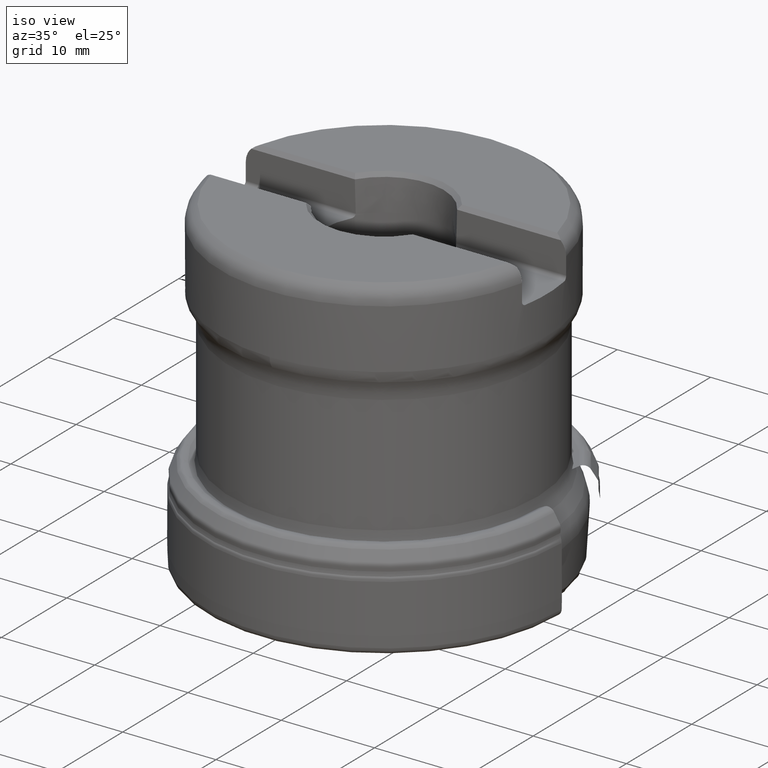
[diagram: clean part render]
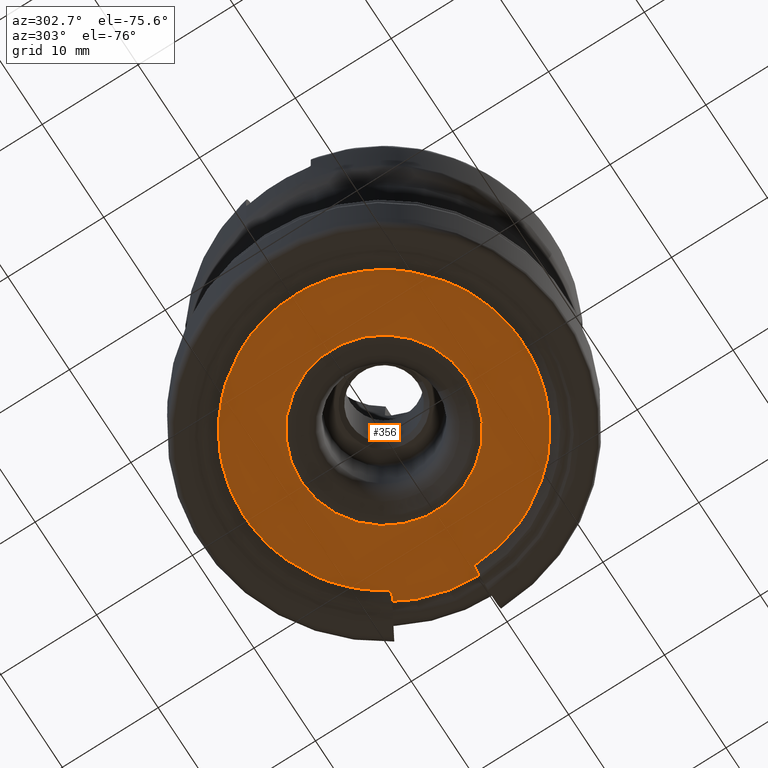
[diagram: tour spotlight — one face highlighted and labeled with its STEP entity id]
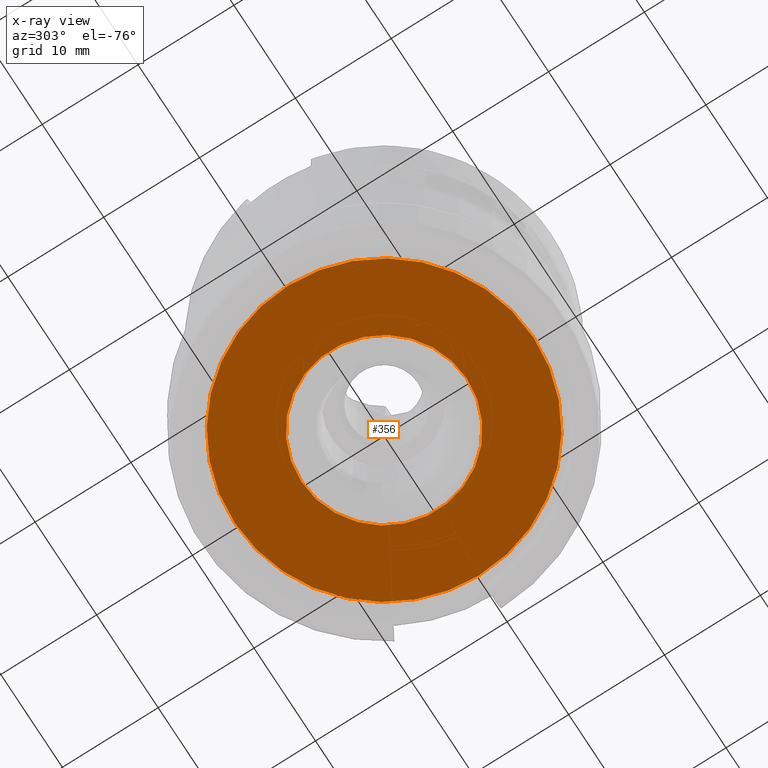
[diagram: x-ray of the same camera — body ghosted, this tour face saturated]
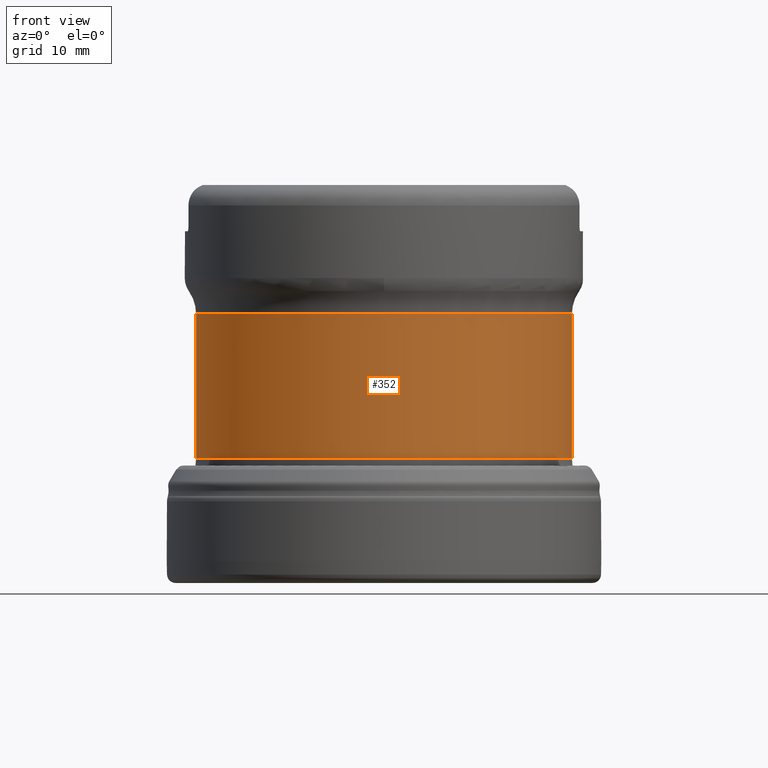
[diagram: tour spotlight — one face highlighted and labeled with its STEP entity id]
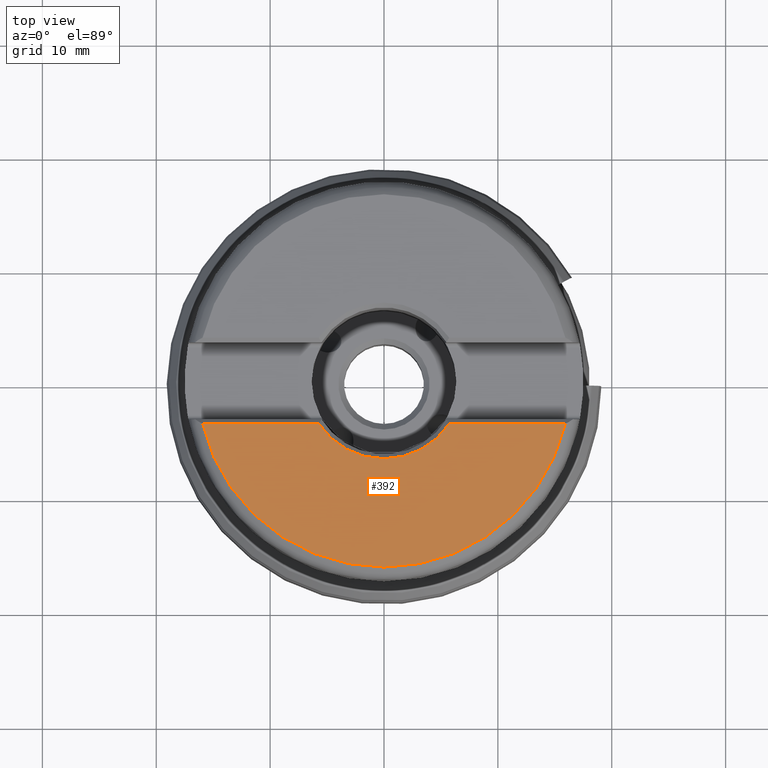
[diagram: tour spotlight — one face highlighted and labeled with its STEP entity id]
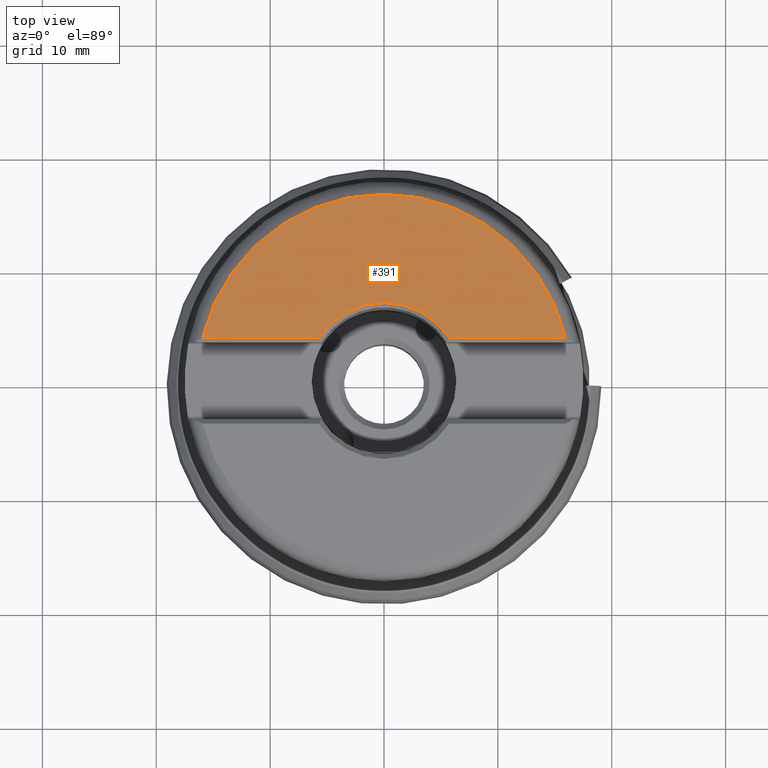
[diagram: tour spotlight — one face highlighted and labeled with its STEP entity id]
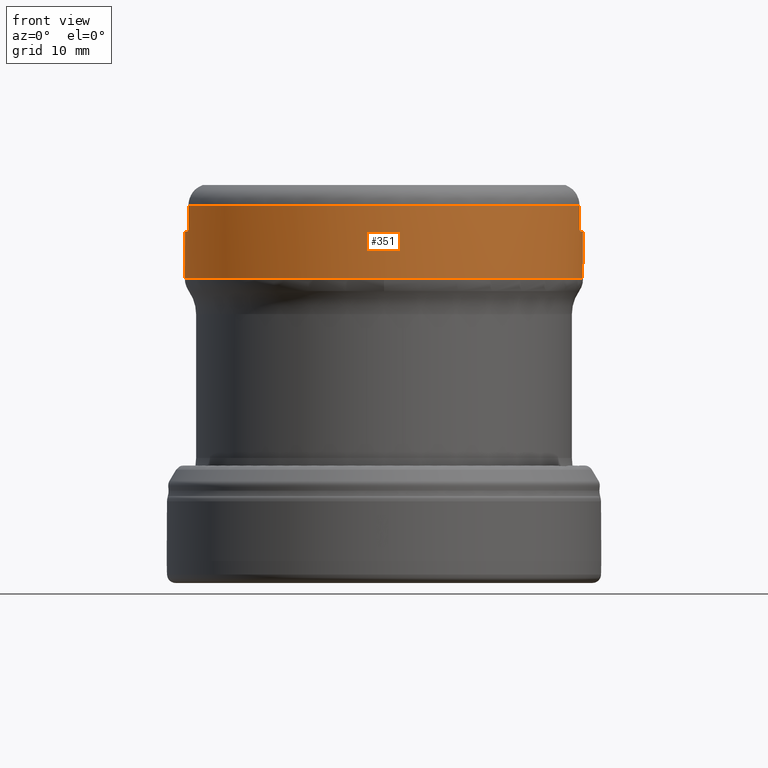
[diagram: tour spotlight — one face highlighted and labeled with its STEP entity id]
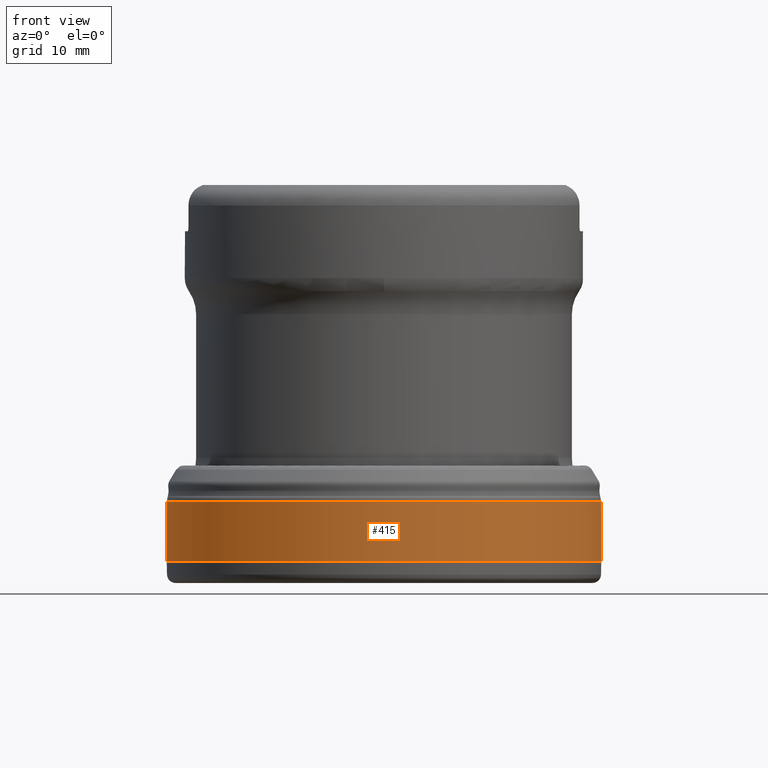
[diagram: tour spotlight — one face highlighted and labeled with its STEP entity id]
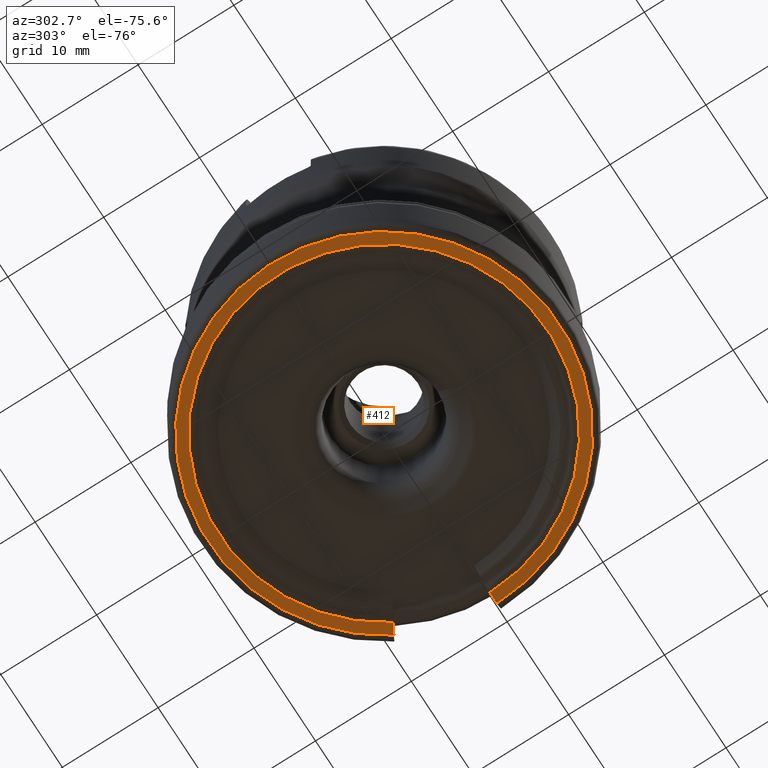
[diagram: tour spotlight — one face highlighted and labeled with its STEP entity id]
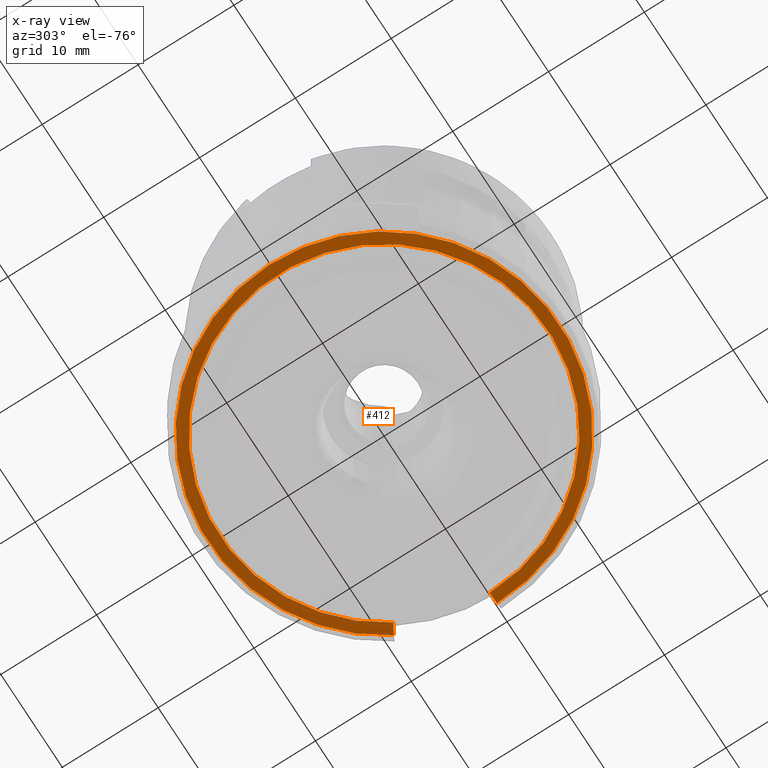
[diagram: x-ray of the same camera — body ghosted, this tour face saturated]
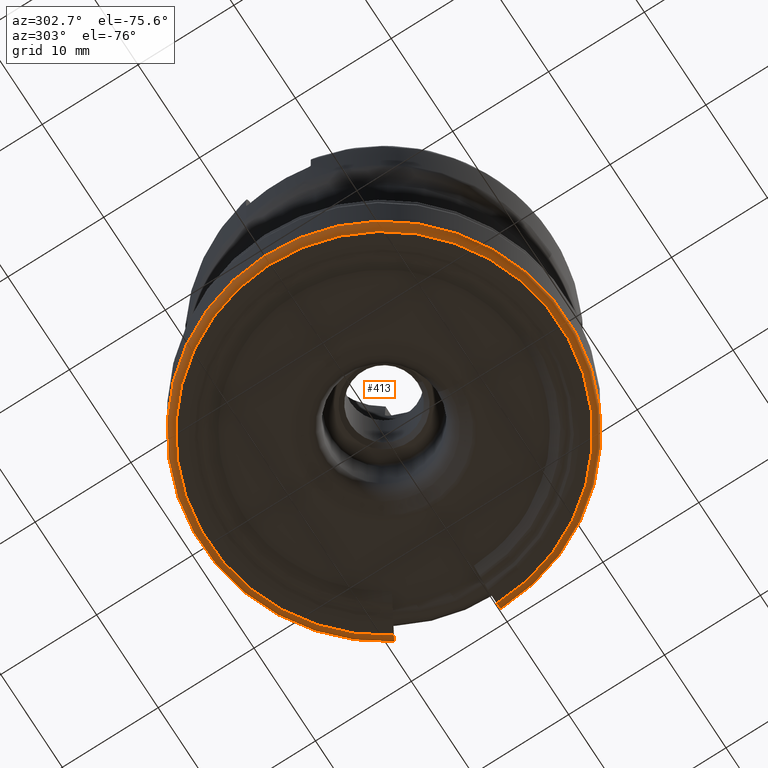
[diagram: tour spotlight — one face highlighted and labeled with its STEP entity id]
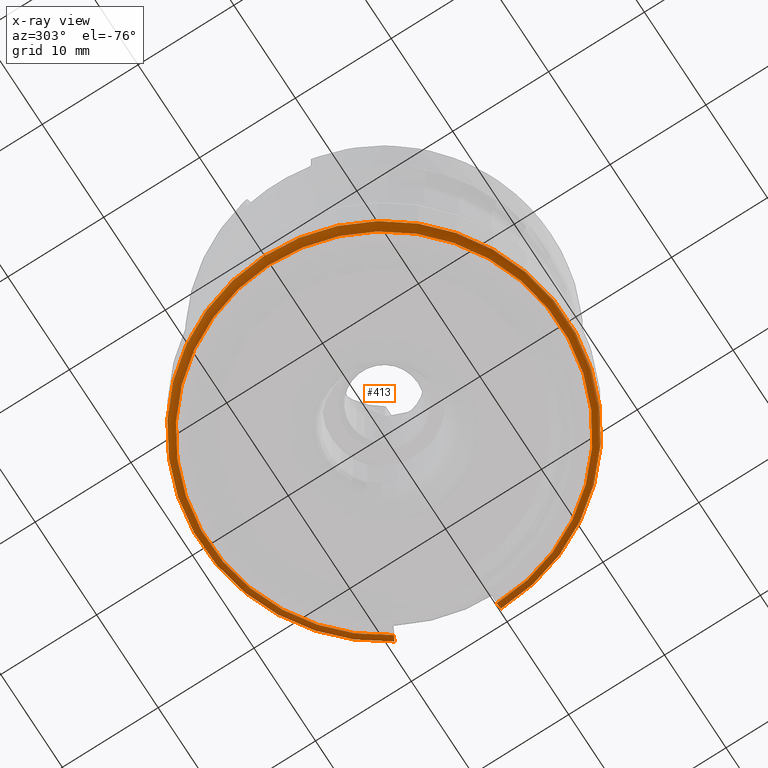
[diagram: x-ray of the same camera — body ghosted, this tour face saturated]
A machine part: a face-by-face anatomy tour. The part has 95 B-rep faces; the first image is the clean iso view, then the 8 largest visible faces are spotlighted one at a time (largest first), each with its STEP entity span.

Face 1 — auxiliary view, entity #356. An x-ray twin of the same camera follows (body ghosted, this face saturated) — the face is partly hidden behind the body. In plain terms, the highlighted planar face has unit normal (0, 0, 1).
Definition (entity closure, byte-faithful):
#182=FACE_BOUND('',#537,.T.);
#183=FACE_BOUND('',#538,.T.);
#306=PLANE('',#1751);
#356=ADVANCED_FACE('',(#182,#183),#306,.F.);
#537=EDGE_LOOP('',(#749));
#538=EDGE_LOOP('',(#750));
#749=ORIENTED_EDGE('',*,*,#1303,.T.);
#750=ORIENTED_EDGE('',*,*,#1304,.T.);
#1125=VERTEX_POINT('',#3102);
#1126=VERTEX_POINT('',#3104);
#1303=EDGE_CURVE('',#1125,#1125,#1475,.T.);
#1304=EDGE_CURVE('',#1126,#1126,#1476,.T.);
#1475=CIRCLE('',#1749,8.64338932528588);
#1476=CIRCLE('',#1750,15.5849874975539);
#1749=AXIS2_PLACEMENT_3D('',#3101,#2007,#2008);
#1750=AXIS2_PLACEMENT_3D('',#3103,#2009,#2010);
#1751=AXIS2_PLACEMENT_3D('',#3105,#2011,#2012);
#2007=DIRECTION('',(0.,1.17145536458252E-15,1.));
#2008=DIRECTION('',(0.,-1.,1.17910926348637E-15));
#2009=DIRECTION('',(0.,-1.17145536458252E-15,-1.));
#2010=DIRECTION('',(0.,-1.,1.16872705227484E-15));
#2011=DIRECTION('',(0.,1.17145536458252E-15,1.));
#2012=DIRECTION('',(0.,-1.,1.17137202715334E-15));
#3101=CARTESIAN_POINT('',(0.,1.28860090104078E-15,1.1));
#3102=CARTESIAN_POINT('',(0.,-8.64338932528588,1.10000000000001));
#3103=CARTESIAN_POINT('',(0.,1.28860090104078E-15,1.1));
#3104=CARTESIAN_POINT('',(0.,-15.5849874975539,1.10000000000002));
#3105=CARTESIAN_POINT('',(16.2047914002725,1.28860090104078E-15,1.1));

Face 2 — front view, entity #352. In plain terms, the highlighted cylindrical surface (bore or boss wall) has radius 16.5 mm, axis along (0, -0, -1).
Definition (entity closure, byte-faithful):
#157=CYLINDRICAL_SURFACE('',#1738,16.5);
#176=FACE_BOUND('',#530,.T.);
#177=FACE_BOUND('',#531,.T.);
#352=ADVANCED_FACE('',(#176,#177),#157,.T.);
#530=EDGE_LOOP('',(#732));
#531=EDGE_LOOP('',(#733));
#732=ORIENTED_EDGE('',*,*,#1290,.T.);
#733=ORIENTED_EDGE('',*,*,#1291,.T.);
#1116=VERTEX_POINT('',#2956);
#1117=VERTEX_POINT('',#2958);
#1290=EDGE_CURVE('',#1116,#1116,#1468,.T.);
#1291=EDGE_CURVE('',#1117,#1117,#1469,.T.);
#1468=CIRCLE('',#1736,16.5);
#1469=CIRCLE('',#1737,16.5);
#1736=AXIS2_PLACEMENT_3D('',#2955,#1981,#1982);
#1737=AXIS2_PLACEMENT_3D('',#2957,#1983,#1984);
#1738=AXIS2_PLACEMENT_3D('',#2959,#1985,#1986);
#1981=DIRECTION('',(0.,1.17145536458252E-15,1.));
#1982=DIRECTION('',(0.,1.,-1.15648231731787E-15));
#1983=DIRECTION('',(0.,-1.17145536458252E-15,-1.));
#1984=DIRECTION('',(0.,1.,-1.26161707343768E-15));
#1985=DIRECTION('',(0.,-1.17145536458252E-15,-1.));
#1986=DIRECTION('',(0.,1.,-1.17145536458252E-15));
#2955=CARTESIAN_POINT('',(0.,1.2841757453791E-14,10.9622251449312));
#2956=CARTESIAN_POINT('',(0.,16.5,10.9622251449311));
#2957=CARTESIAN_POINT('',(0.,2.76359785969478E-14,23.5911494645778));
#2958=CARTESIAN_POINT('',(0.,16.5,23.5911494645778));
#2959=CARTESIAN_POINT('',(0.,0.,0.));

Face 3 — top view, entity #392. In plain terms, the highlighted planar face has unit normal (0, 0, 1).
Definition (entity closure, byte-faithful):
#258=LINE('',#2830,#278);
#260=LINE('',#2844,#280);
#278=VECTOR('',#1933,1.);
#280=VECTOR('',#1945,1.);
#317=PLANE('',#1811);
#392=ADVANCED_FACE('',(#486),#317,.T.);
#486=FACE_OUTER_BOUND('',#594,.T.);
#594=EDGE_LOOP('',(#895,#896,#897,#898));
#895=ORIENTED_EDGE('',*,*,#1254,.F.);
#896=ORIENTED_EDGE('',*,*,#1260,.F.);
#897=ORIENTED_EDGE('',*,*,#1264,.F.);
#898=ORIENTED_EDGE('',*,*,#1266,.F.);
#1090=VERTEX_POINT('',#2786);
#1091=VERTEX_POINT('',#2788);
#1095=VERTEX_POINT('',#2828);
#1098=VERTEX_POINT('',#2839);
#1254=EDGE_CURVE('',#1090,#1091,#1459,.T.);
#1260=EDGE_CURVE('',#1095,#1090,#258,.T.);
#1264=EDGE_CURVE('',#1098,#1095,#1461,.T.);
#1266=EDGE_CURVE('',#1091,#1098,#260,.T.);
#1459=CIRCLE('',#1715,16.3717797887081);
#1461=CIRCLE('',#1720,6.86033290492629);
#1715=AXIS2_PLACEMENT_3D('',#2787,#1927,#1928);
#1720=AXIS2_PLACEMENT_3D('',#2841,#1939,#1940);
#1811=AXIS2_PLACEMENT_3D('',#3451,#2139,#2140);
#1927=DIRECTION('',(0.,-1.17145536458252E-15,-1.));
#1928=DIRECTION('',(0.,-1.,1.27149778340405E-15));
#1933=DIRECTION('',(1.,0.,0.));
#1939=DIRECTION('',(0.,1.17145536458252E-15,1.));
#1940=DIRECTION('',(0.,-1.,1.01145148494536E-15));
#1945=DIRECTION('',(1.,0.,0.));
#2139=DIRECTION('',(0.,1.17145536458252E-15,1.));
#2140=DIRECTION('',(0.,-1.,1.17267306976032E-15));
#2786=CARTESIAN_POINT('',(15.9306167002563,-3.77499999999995,34.925));
#2787=CARTESIAN_POINT('',(0.,4.09130786080447E-14,34.925));
#2788=CARTESIAN_POINT('',(-15.9306167002537,-3.77499999999995,34.925));
#2828=CARTESIAN_POINT('',(5.7283106206293,-3.77499999999995,34.925));
#2830=CARTESIAN_POINT('',(-24.5,-3.77499999999995,34.925));
#2839=CARTESIAN_POINT('',(-5.7283106206293,-3.77499999999995,34.925));
#2841=CARTESIAN_POINT('',(0.,4.09130786080447E-14,34.925));
#2844=CARTESIAN_POINT('',(-24.5,-3.77499999999995,34.925));
#3451=CARTESIAN_POINT('',(0.,4.09130786080447E-14,34.925));

Face 4 — top view, entity #391. In plain terms, the highlighted planar face has unit normal (0, 0, 1).
Definition (entity closure, byte-faithful):
#262=LINE('',#2855,#282);
#264=LINE('',#2869,#284);
#282=VECTOR('',#1951,1.);
#284=VECTOR('',#1963,1.);
#316=PLANE('',#1810);
#391=ADVANCED_FACE('',(#485),#316,.T.);
#485=FACE_OUTER_BOUND('',#593,.T.);
#593=EDGE_LOOP('',(#891,#892,#893,#894));
#891=ORIENTED_EDGE('',*,*,#1248,.F.);
#892=ORIENTED_EDGE('',*,*,#1270,.F.);
#893=ORIENTED_EDGE('',*,*,#1274,.F.);
#894=ORIENTED_EDGE('',*,*,#1276,.F.);
#1084=VERTEX_POINT('',#2743);
#1085=VERTEX_POINT('',#2745);
#1101=VERTEX_POINT('',#2853);
#1104=VERTEX_POINT('',#2864);
#1248=EDGE_CURVE('',#1084,#1085,#1457,.T.);
#1270=EDGE_CURVE('',#1101,#1084,#262,.T.);
#1274=EDGE_CURVE('',#1104,#1101,#1463,.T.);
#1276=EDGE_CURVE('',#1085,#1104,#264,.T.);
#1457=CIRCLE('',#1712,16.3717797887081);
#1463=CIRCLE('',#1727,6.86033290492629);
#1712=AXIS2_PLACEMENT_3D('',#2744,#1921,#1922);
#1727=AXIS2_PLACEMENT_3D('',#2866,#1957,#1958);
#1810=AXIS2_PLACEMENT_3D('',#3450,#2137,#2138);
#1921=DIRECTION('',(0.,-1.17145536458252E-15,-1.));
#1922=DIRECTION('',(0.,-1.,1.27149778340405E-15));
#1951=DIRECTION('',(-1.,0.,0.));
#1957=DIRECTION('',(0.,1.17145536458252E-15,1.));
#1958=DIRECTION('',(0.,-1.,1.01145148494536E-15));
#1963=DIRECTION('',(-1.,0.,0.));
#2137=DIRECTION('',(0.,1.17145536458252E-15,1.));
#2138=DIRECTION('',(0.,-1.,1.17267306976032E-15));
#2743=CARTESIAN_POINT('',(-15.9306167002563,3.77500000000004,34.925));
#2744=CARTESIAN_POINT('',(0.,4.09130786080447E-14,34.925));
#2745=CARTESIAN_POINT('',(15.9306167002536,3.77500000000004,34.925));
#2853=CARTESIAN_POINT('',(-5.72831062062929,3.77500000000004,34.925));
#2855=CARTESIAN_POINT('',(-24.5,3.77500000000004,34.925));
#2864=CARTESIAN_POINT('',(5.7283106206293,3.77500000000004,34.925));
#2866=CARTESIAN_POINT('',(0.,4.09130786080447E-14,34.925));
#2869=CARTESIAN_POINT('',(-24.5,3.77500000000004,34.925));
#3450=CARTESIAN_POINT('',(0.,4.09130786080447E-14,34.925));

Face 5 — front view, entity #351. In plain terms, the highlighted cylindrical surface (bore or boss wall) has radius 17.5 mm, axis along (0, -0, -1).
Definition (entity closure, byte-faithful):
#156=CYLINDRICAL_SURFACE('',#1735,17.5);
#174=FACE_BOUND('',#528,.T.);
#175=FACE_BOUND('',#529,.T.);
#266=LINE('',#2876,#286);
#267=LINE('',#2914,#287);
#268=LINE('',#2915,#288);
#269=LINE('',#2953,#289);
#286=VECTOR('',#1971,1.);
#287=VECTOR('',#1974,1.);
#288=VECTOR('',#1975,1.);
#289=VECTOR('',#1978,1.);
#351=ADVANCED_FACE('',(#174,#175),#156,.T.);
#528=EDGE_LOOP('',(#719));
#529=EDGE_LOOP('',(#720,#721,#722,#723,#724,#725,#726,#727,#728,#729,#730,
#731));
#719=ORIENTED_EDGE('',*,*,#1279,.T.);
#720=ORIENTED_EDGE('',*,*,#1280,.F.);
#721=ORIENTED_EDGE('',*,*,#1281,.T.);
#722=ORIENTED_EDGE('',*,*,#1282,.F.);
#723=ORIENTED_EDGE('',*,*,#1283,.T.);
#724=ORIENTED_EDGE('',*,*,#1284,.F.);
#725=ORIENTED_EDGE('',*,*,#1257,.T.);
#726=ORIENTED_EDGE('',*,*,#1285,.F.);
#727=ORIENTED_EDGE('',*,*,#1286,.T.);
#728=ORIENTED_EDGE('',*,*,#1287,.F.);
#729=ORIENTED_EDGE('',*,*,#1288,.T.);
#730=ORIENTED_EDGE('',*,*,#1289,.F.);
#731=ORIENTED_EDGE('',*,*,#1251,.T.);
#1087=VERTEX_POINT('',#2764);
#1088=VERTEX_POINT('',#2766);
#1093=VERTEX_POINT('',#2807);
#1094=VERTEX_POINT('',#2809);
#1107=VERTEX_POINT('',#2875);
#1108=VERTEX_POINT('',#2877);
#1109=VERTEX_POINT('',#2894);
#1110=VERTEX_POINT('',#2896);
#1111=VERTEX_POINT('',#2913);
#1112=VERTEX_POINT('',#2916);
#1113=VERTEX_POINT('',#2933);
#1114=VERTEX_POINT('',#2935);
#1115=VERTEX_POINT('',#2952);
#1251=EDGE_CURVE('',#1088,#1087,#1458,.T.);
#1257=EDGE_CURVE('',#1094,#1093,#1460,.T.);
#1279=EDGE_CURVE('',#1107,#1107,#1465,.T.);
#1280=EDGE_CURVE('',#1108,#1087,#266,.T.);
#1281=EDGE_CURVE('',#1108,#1109,#1577,.T.);
#1282=EDGE_CURVE('',#1110,#1109,#1466,.T.);
#1283=EDGE_CURVE('',#1110,#1111,#1578,.T.);
#1284=EDGE_CURVE('',#1094,#1111,#267,.T.);
#1285=EDGE_CURVE('',#1112,#1093,#268,.T.);
#1286=EDGE_CURVE('',#1112,#1113,#1579,.T.);
#1287=EDGE_CURVE('',#1114,#1113,#1467,.T.);
#1288=EDGE_CURVE('',#1114,#1115,#1580,.T.);
#1289=EDGE_CURVE('',#1088,#1115,#269,.T.);
#1458=CIRCLE('',#1713,17.5);
#1460=CIRCLE('',#1716,17.5);
#1465=CIRCLE('',#1732,17.5);
#1466=CIRCLE('',#1733,17.5);
#1467=CIRCLE('',#1734,17.5);
#1577=B_SPLINE_CURVE_WITH_KNOTS('',3,(#2878,#2879,#2880,#2881,#2882,#2883,
#2884,#2885,#2886,#2887,#2888,#2889,#2890,#2891,#2892,#2893),
 .UNSPECIFIED.,.F.,.F.,(4,3,3,3,3,4),(0.,0.210297442330474,0.420476453208902,
0.632512444039903,0.848286898187027,1.),.UNSPECIFIED.);
#1578=B_SPLINE_CURVE_WITH_KNOTS('',3,(#2897,#2898,#2899,#2900,#2901,#2902,
#2903,#2904,#2905,#2906,#2907,#2908,#2909,#2910,#2911,#2912),
 .UNSPECIFIED.,.F.,.F.,(4,3,3,3,3,4),(0.,0.219244922098051,0.438553131095991,
0.656737131373445,0.871496930671707,1.),.UNSPECIFIED.);
#1579=B_SPLINE_CURVE_WITH_KNOTS('',3,(#2917,#2918,#2919,#2920,#2921,#2922,
#2923,#2924,#2925,#2926,#2927,#2928,#2929,#2930,#2931,#2932),
 .UNSPECIFIED.,.F.,.F.,(4,3,3,3,3,4),(0.,0.210297442330485,0.420476453208911,
0.63251244403991,0.848286898187028,1.),.UNSPECIFIED.);
#1580=B_SPLINE_CURVE_WITH_KNOTS('',3,(#2936,#2937,#2938,#2939,#2940,#2941,
#2942,#2943,#2944,#2945,#2946,#2947,#2948,#2949,#2950,#2951),
 .UNSPECIFIED.,.F.,.F.,(4,3,3,3,3,4),(0.,0.219244922098057,0.438553131095999,
0.656737131373461,0.871496930671718,1.),.UNSPECIFIED.);
#1713=AXIS2_PLACEMENT_3D('',#2765,#1923,#1924);
#1716=AXIS2_PLACEMENT_3D('',#2808,#1929,#1930);
#1732=AXIS2_PLACEMENT_3D('',#2874,#1969,#1970);
#1733=AXIS2_PLACEMENT_3D('',#2895,#1972,#1973);
#1734=AXIS2_PLACEMENT_3D('',#2934,#1976,#1977);
#1735=AXIS2_PLACEMENT_3D('',#2954,#1979,#1980);
#1923=DIRECTION('',(0.,-1.17145536458252E-15,-1.));
#1924=DIRECTION('',(0.,1.,-1.18952466924124E-15));
#1929=DIRECTION('',(0.,-1.17145536458252E-15,-1.));
#1930=DIRECTION('',(0.,1.,-1.18952466924124E-15));
#1969=DIRECTION('',(0.,1.17145536458252E-15,1.));
#1970=DIRECTION('',(0.,-1.,1.18952466924124E-15));
#1971=DIRECTION('',(0.,1.17145536458252E-15,1.));
#1972=DIRECTION('',(0.,1.17145536458252E-15,1.));
#1973=DIRECTION('',(0.,-1.,1.18952466924124E-15));
#1974=DIRECTION('',(0.,-1.17145536458252E-15,-1.));
#1975=DIRECTION('',(0.,1.17145536458252E-15,1.));
#1976=DIRECTION('',(0.,1.17145536458252E-15,1.));
#1977=DIRECTION('',(0.,-1.,1.18952466924124E-15));
#1978=DIRECTION('',(0.,-1.17145536458252E-15,-1.));
#1979=DIRECTION('',(0.,-1.17145536458252E-15,-1.));
#1980=DIRECTION('',(0.,1.,-1.17145536458252E-15));
#2764=CARTESIAN_POINT('',(17.1714697973121,3.37500000000004,33.125));
#2765=CARTESIAN_POINT('',(0.,3.88044589517961E-14,33.125));
#2766=CARTESIAN_POINT('',(-17.1714697973124,3.37500000000004,33.125));
#2807=CARTESIAN_POINT('',(-17.1714697973121,-3.37499999999996,33.125));
#2808=CARTESIAN_POINT('',(0.,3.88044589517961E-14,33.125));
#2809=CARTESIAN_POINT('',(17.1714697973121,-3.37499999999996,33.125));
#2874=CARTESIAN_POINT('',(0.,3.13404457262515E-14,26.7534271247462));
#2875=CARTESIAN_POINT('',(0.,-17.5,26.7534271247462));
#2876=CARTESIAN_POINT('',(17.1714697973121,3.37500000000002,-2.67294803921753E-15));
#2877=CARTESIAN_POINT('',(17.171469797312,3.37500000000004,31.261));
#2878=CARTESIAN_POINT('',(17.171469797312,3.37500000000004,31.261));
#2879=CARTESIAN_POINT('',(17.171469797312,3.37500000000004,31.2168340238711));
#2880=CARTESIAN_POINT('',(17.1729544281371,3.36746955545054,31.1720596355158));
#2881=CARTESIAN_POINT('',(17.175763886683,3.35307842272103,31.1303986743068));
#2882=CARTESIAN_POINT('',(17.1785724609988,3.33869181935999,31.088750825189));
#2883=CARTESIAN_POINT('',(17.182776854202,3.31706741780564,31.0490742047303));
#2884=CARTESIAN_POINT('',(17.1879483875526,3.29005018606515,31.0145382783061));
#2885=CARTESIAN_POINT('',(17.1931660288358,3.26279207630765,30.979694439304));
#2886=CARTESIAN_POINT('',(17.1995033872685,3.22931810810366,30.9491352432382));
#2887=CARTESIAN_POINT('',(17.2063586644335,3.19236926292602,30.9252164334947));
#2888=CARTESIAN_POINT('',(17.2133331851175,3.15477771429286,30.9008815701073));
#2889=CARTESIAN_POINT('',(17.2210288297503,3.1125728051821,30.8827568237317));
#2890=CARTESIAN_POINT('',(17.2287603835597,3.06917181758898,30.8722434325031));
#2891=CARTESIAN_POINT('',(17.2342346752819,3.0384419445299,30.8647994733723));
#2892=CARTESIAN_POINT('',(17.2398159567687,3.00662193869461,30.861));
#2893=CARTESIAN_POINT('',(17.2452710909397,2.97500000000004,30.861));
#2894=CARTESIAN_POINT('',(17.2452710909397,2.97500000000004,30.861));
#2895=CARTESIAN_POINT('',(0.,3.61522840063813E-14,30.861));
#2896=CARTESIAN_POINT('',(17.2452710909397,-2.97499999999996,30.861));
#2897=CARTESIAN_POINT('',(17.2452710909397,-2.97499999999996,30.861));
#2898=CARTESIAN_POINT('',(17.2374433666583,-3.02037520243974,30.861));
#2899=CARTESIAN_POINT('',(17.2293189089011,-3.06634285322371,30.868932334333));
#2900=CARTESIAN_POINT('',(17.2215980950038,-3.10910904507385,30.8841515370479));
#2901=CARTESIAN_POINT('',(17.2138761207462,-3.15188166425088,30.8993730270553));
#2902=CARTESIAN_POINT('',(17.2063455157219,-3.19264220989067,30.922313141316));
#2903=CARTESIAN_POINT('',(17.1997198214629,-3.22794641578437,30.9511321075977));
#2904=CARTESIAN_POINT('',(17.1931291544587,-3.26306398321214,30.9797987201437));
#2905=CARTESIAN_POINT('',(17.1872535709278,-3.29376550943381,31.0151010620439));
#2906=CARTESIAN_POINT('',(17.182701932114,-3.31734145244756,31.0541127603353));
#2907=CARTESIAN_POINT('',(17.1782211633117,-3.34055031287367,31.0925170379544));
#2908=CARTESIAN_POINT('',(17.1749025442045,-3.35750050524423,31.1356055864785));
#2909=CARTESIAN_POINT('',(17.1731076692045,-3.36665605340199,31.1797255523947));
#2910=CARTESIAN_POINT('',(17.1720235017401,-3.37218632566722,31.2063755595428));
#2911=CARTESIAN_POINT('',(17.1714697973123,-3.3750000000006,31.2337606495779));
#2912=CARTESIAN_POINT('',(17.1714697973123,-3.37500000000061,31.2609999999999));
#2913=CARTESIAN_POINT('',(17.171469797312,-3.37499999999996,31.261));
#2914=CARTESIAN_POINT('',(17.1714697973121,-3.375,3.95366185546602E-15));
#2915=CARTESIAN_POINT('',(-17.1714697973121,-3.375,3.95366185546602E-15));
#2916=CARTESIAN_POINT('',(-17.1714697973121,-3.37499999999996,31.261));
#2917=CARTESIAN_POINT('',(-17.1714697973121,-3.37499999999996,31.261));
#2918=CARTESIAN_POINT('',(-17.1714697973121,-3.37499999999996,31.2168340238711));
#2919=CARTESIAN_POINT('',(-17.1729544281371,-3.36746955545046,31.1720596355158));
#2920=CARTESIAN_POINT('',(-17.175763886683,-3.35307842272095,31.1303986743068));
#2921=CARTESIAN_POINT('',(-17.1785724609988,-3.33869181935991,31.088750825189));
#2922=CARTESIAN_POINT('',(-17.182776854202,-3.31706741780556,31.0490742047303));
#2923=CARTESIAN_POINT('',(-17.1879483875526,-3.29005018606507,31.0145382783061));
#2924=CARTESIAN_POINT('',(-17.1931660288358,-3.26279207630757,30.979694439304));
#2925=CARTESIAN_POINT('',(-17.1995033872685,-3.22931810810359,30.9491352432382));
#2926=CARTESIAN_POINT('',(-17.2063586644335,-3.19236926292594,30.9252164334947));
#2927=CARTESIAN_POINT('',(-17.2133331851175,-3.15477771429279,30.9008815701073));
#2928=CARTESIAN_POINT('',(-17.2210288297503,-3.11257280518203,30.8827568237317));
#2929=CARTESIAN_POINT('',(-17.2287603835597,-3.06917181758891,30.8722434325031));
#2930=CARTESIAN_POINT('',(-17.2342346752819,-3.03844194452982,30.8647994733723));
#2931=CARTESIAN_POINT('',(-17.2398159567687,-3.00662193869454,30.861));
#2932=CARTESIAN_POINT('',(-17.2452710909397,-2.97499999999996,30.861));
#2933=CARTESIAN_POINT('',(-17.2452710909397,-2.97499999999996,30.861));
#2934=CARTESIAN_POINT('',(0.,3.61522840063813E-14,30.861));
#2935=CARTESIAN_POINT('',(-17.2452710909397,2.97500000000004,30.861));
#2936=CARTESIAN_POINT('',(-17.2452710909397,2.97500000000004,30.861));
#2937=CARTESIAN_POINT('',(-17.2374433666583,3.02037520243981,30.861));
#2938=CARTESIAN_POINT('',(-17.2293189089011,3.06634285322378,30.868932334333));
#2939=CARTESIAN_POINT('',(-17.2215980950038,3.10910904507393,30.8841515370479));
#2940=CARTESIAN_POINT('',(-17.2138761207462,3.15188166425096,30.8993730270553));
#2941=CARTESIAN_POINT('',(-17.2063455157219,3.19264220989075,30.922313141316));
#2942=CARTESIAN_POINT('',(-17.1997198214629,3.22794641578445,30.9511321075977));
#2943=CARTESIAN_POINT('',(-17.1931291544587,3.26306398321222,30.9797987201437));
#2944=CARTESIAN_POINT('',(-17.1872535709278,3.29376550943389,31.0151010620439));
#2945=CARTESIAN_POINT('',(-17.182701932114,3.31734145244764,31.0541127603353));
#2946=CARTESIAN_POINT('',(-17.1782211633117,3.34055031287374,31.0925170379544));
#2947=CARTESIAN_POINT('',(-17.1749025442045,3.35750050524431,31.1356055864785));
#2948=CARTESIAN_POINT('',(-17.1731076692045,3.36665605340207,31.1797255523947));
#2949=CARTESIAN_POINT('',(-17.1720235017401,3.3721863256673,31.2063755595428));
#2950=CARTESIAN_POINT('',(-17.1714697973123,3.37500000000067,31.2337606495779));
#2951=CARTESIAN_POINT('',(-17.1714697973123,3.37500000000068,31.2609999999999));
#2952=CARTESIAN_POINT('',(-17.1714697973121,3.37500000000004,31.261));
#2953=CARTESIAN_POINT('',(-17.1714697973121,3.37500000000002,-2.67294803921753E-15));
#2954=CARTESIAN_POINT('',(0.,0.,0.));

Face 6 — front view, entity #415. In plain terms, the highlighted face is a SurfaceOfRevolution surface.
Definition (entity closure, byte-faithful):
#117=SURFACE_OF_REVOLUTION('',#1640,#140);
#140=AXIS1_PLACEMENT('',#3874,#2216);
#415=ADVANCED_FACE('',(#497),#117,.F.);
#497=FACE_OUTER_BOUND('',#629,.T.);
#629=EDGE_LOOP('',(#995,#996,#997,#998));
#995=ORIENTED_EDGE('',*,*,#1400,.T.);
#996=ORIENTED_EDGE('',*,*,#1399,.F.);
#997=ORIENTED_EDGE('',*,*,#1401,.T.);
#998=ORIENTED_EDGE('',*,*,#1402,.T.);
#1185=VERTEX_POINT('',#3837);
#1186=VERTEX_POINT('',#3844);
#1187=VERTEX_POINT('',#3859);
#1188=VERTEX_POINT('',#3866);
#1399=EDGE_CURVE('',#1186,#1185,#1515,.T.);
#1400=EDGE_CURVE('',#1187,#1185,#1638,.T.);
#1401=EDGE_CURVE('',#1186,#1188,#1639,.T.);
#1402=EDGE_CURVE('',#1188,#1187,#1516,.T.);
#1515=CIRCLE('',#1843,19.0820132478967);
#1516=CIRCLE('',#1844,19.0586698546054);
#1638=B_SPLINE_CURVE_WITH_KNOTS('',5,(#3853,#3854,#3855,#3856,#3857,#3858),
 .UNSPECIFIED.,.F.,.F.,(6,6),(0.,1.),.UNSPECIFIED.);
#1639=B_SPLINE_CURVE_WITH_KNOTS('',5,(#3860,#3861,#3862,#3863,#3864,#3865),
 .UNSPECIFIED.,.F.,.F.,(6,6),(0.,1.),.UNSPECIFIED.);
#1640=B_SPLINE_CURVE_WITH_KNOTS('',5,(#3868,#3869,#3870,#3871,#3872,#3873),
 .UNSPECIFIED.,.F.,.F.,(6,6),(0.,1.),.UNSPECIFIED.);
#1843=AXIS2_PLACEMENT_3D('',#3845,#2211,#2212);
#1844=AXIS2_PLACEMENT_3D('',#3867,#2214,#2215);
#2211=DIRECTION('',(0.,0.,-1.));
#2212=DIRECTION('',(-1.,0.,0.));
#2214=DIRECTION('',(0.,0.,-1.));
#2215=DIRECTION('',(-1.,0.,0.));
#2216=DIRECTION('',(0.,0.,-1.));
#3837=CARTESIAN_POINT('',(16.5255082280297,9.54100662394841,1.90663757386915));
#3844=CARTESIAN_POINT('',(19.0820132478967,-5.20417042793042E-15,1.90663757386915));
#3845=CARTESIAN_POINT('',(0.,0.,1.90663757386915));
#3853=CARTESIAN_POINT('',(16.5052922564289,9.52933492730278,7.14467338801975));
#3854=CARTESIAN_POINT('',(16.5249398834373,9.54067849004502,6.09725065268402));
#3855=CARTESIAN_POINT('',(16.5367360915238,9.5474890339592,5.04963136863826));
#3856=CARTESIAN_POINT('',(16.5407367370961,9.54979880775726,4.00192158758359));
#3857=CARTESIAN_POINT('',(16.5369851356297,9.54763281964077,2.95422314776459));
#3858=CARTESIAN_POINT('',(16.5255082280295,9.54100662394833,1.90663757386945));
#3859=CARTESIAN_POINT('',(16.5052922564289,9.52933492730278,7.14467338801975));
#3860=CARTESIAN_POINT('',(19.0820132478965,0.,1.90663757386945));
#3861=CARTESIAN_POINT('',(19.0952656392814,-2.65484462919886E-31,2.95422314776459));
#3862=CARTESIAN_POINT('',(19.0995976155144,-1.02841452057421E-30,4.00192158758359));
#3863=CARTESIAN_POINT('',(19.0949780679182,-1.73472347597681E-15,5.04963136863826));
#3864=CARTESIAN_POINT('',(19.0813569800899,-1.73472347597681E-15,6.09725065268402));
#3865=CARTESIAN_POINT('',(19.0586698546054,-1.73472347597681E-15,7.14467338801975));
#3866=CARTESIAN_POINT('',(19.0586698546054,-1.73472347597681E-15,7.14467338801975));
#3867=CARTESIAN_POINT('',(0.,0.,7.14467338801975));
#3868=CARTESIAN_POINT('',(19.0820132478965,0.,1.90663757386945));
#3869=CARTESIAN_POINT('',(19.0952656392814,-2.65484462919886E-31,2.95422314776459));
#3870=CARTESIAN_POINT('',(19.0995976155144,-1.02841452057421E-30,4.00192158758359));
#3871=CARTESIAN_POINT('',(19.0949780679182,-1.73472347597681E-15,5.04963136863826));
#3872=CARTESIAN_POINT('',(19.0813569800899,-1.73472347597681E-15,6.09725065268402));
#3873=CARTESIAN_POINT('',(19.0586698546054,-1.73472347597681E-15,7.14467338801975));
#3874=CARTESIAN_POINT('',(0.,0.,0.));

Face 7 — auxiliary view, entity #412. An x-ray twin of the same camera follows (body ghosted, this face saturated) — the face is partly hidden behind the body. In plain terms, the highlighted conical surface has half-angle 89.845 deg.
Definition (entity closure, byte-faithful):
#257=CONICAL_SURFACE('',#1841,17.1607551394049,89.8448392843262);
#412=ADVANCED_FACE('',(#494),#257,.T.);
#494=FACE_OUTER_BOUND('',#626,.T.);
#626=EDGE_LOOP('',(#983,#984,#985,#986));
#983=ORIENTED_EDGE('',*,*,#1391,.T.);
#984=ORIENTED_EDGE('',*,*,#1390,.F.);
#985=ORIENTED_EDGE('',*,*,#1392,.T.);
#986=ORIENTED_EDGE('',*,*,#1393,.T.);
#1179=VERTEX_POINT('',#3717);
#1180=VERTEX_POINT('',#3736);
#1181=VERTEX_POINT('',#3763);
#1182=VERTEX_POINT('',#3770);
#1390=EDGE_CURVE('',#1180,#1179,#1512,.T.);
#1391=EDGE_CURVE('',#1181,#1179,#1630,.T.);
#1392=EDGE_CURVE('',#1180,#1182,#1631,.T.);
#1393=EDGE_CURVE('',#1182,#1181,#1513,.T.);
#1512=CIRCLE('',#1839,17.1607551394049);
#1513=CIRCLE('',#1840,18.3128691306982);
#1630=B_SPLINE_CURVE_WITH_KNOTS('',5,(#3757,#3758,#3759,#3760,#3761,#3762),
 .UNSPECIFIED.,.F.,.F.,(6,6),(0.,1.),.UNSPECIFIED.);
#1631=B_SPLINE_CURVE_WITH_KNOTS('',5,(#3764,#3765,#3766,#3767,#3768,#3769),
 .UNSPECIFIED.,.F.,.F.,(6,6),(0.,1.),.UNSPECIFIED.);
#1839=AXIS2_PLACEMENT_3D('',#3737,#2201,#2202);
#1840=AXIS2_PLACEMENT_3D('',#3771,#2204,#2205);
#1841=AXIS2_PLACEMENT_3D('',#3772,#2206,#2207);
#2201=DIRECTION('',(0.,0.,-1.));
#2202=DIRECTION('',(-1.,0.,0.));
#2204=DIRECTION('',(0.,0.,-1.));
#2205=DIRECTION('',(-1.,0.,0.));
#2206=DIRECTION('',(0.,0.,1.));
#2207=DIRECTION('',(1.,0.,5.42327060827068E-20));
#3717=CARTESIAN_POINT('',(14.8616498988489,8.5803775697025,-0.0229302558368023));
#3736=CARTESIAN_POINT('',(17.1607551394049,0.,-0.0229302558368023));
#3737=CARTESIAN_POINT('',(0.,0.,-0.0229302558368023));
#3757=CARTESIAN_POINT('',(15.859409884697,9.15643456611854,-0.0198102482257149));
#3758=CARTESIAN_POINT('',(15.6598578865527,9.04122316627262,-0.0204338341039593));
#3759=CARTESIAN_POINT('',(15.4603058888643,8.92601176668986,-0.0210576144666295));
#3760=CARTESIAN_POINT('',(15.2607538916612,8.8108003673873,-0.0216816017960651));
#3761=CARTESIAN_POINT('',(15.0612018949766,8.69558896838412,-0.0223058101592092));
#3762=CARTESIAN_POINT('',(14.8616498988489,8.58037756970251,-0.0229302558454525));
#3763=CARTESIAN_POINT('',(15.8594098833645,9.15643456534919,-0.0198075635439595));
#3764=CARTESIAN_POINT('',(17.1607551394049,0.,-0.0229302558454525));
#3765=CARTESIAN_POINT('',(17.3911779367681,1.52259585678794E-32,-0.0223058101592092));
#3766=CARTESIAN_POINT('',(17.6216007347744,2.28859525811305E-32,-0.0216816017960651));
#3767=CARTESIAN_POINT('',(17.8520235333796,5.26237175793689E-33,-0.0210576144666295));
#3768=CARTESIAN_POINT('',(18.0824463325451,4.28740138714197E-33,-0.0204338341039593));
#3769=CARTESIAN_POINT('',(18.3128691322369,0.,-0.0198102482257149));
#3770=CARTESIAN_POINT('',(18.3128691306982,0.,-0.0198075635439595));
#3771=CARTESIAN_POINT('',(0.,0.,-0.0198075635439595));
#3772=CARTESIAN_POINT('',(0.,0.,-0.0229302558454525));

Face 8 — auxiliary view, entity #413. An x-ray twin of the same camera follows (body ghosted, this face saturated) — the face is partly hidden behind the body. In plain terms, the highlighted face is a SurfaceOfRevolution surface.
Definition (entity closure, byte-faithful):
#115=SURFACE_OF_REVOLUTION('',#1634,#138);
#138=AXIS1_PLACEMENT('',#3830,#2210);
#413=ADVANCED_FACE('',(#495),#115,.F.);
#495=FACE_OUTER_BOUND('',#627,.T.);
#627=EDGE_LOOP('',(#987,#988,#989,#990));
#987=ORIENTED_EDGE('',*,*,#1394,.T.);
#988=ORIENTED_EDGE('',*,*,#1393,.F.);
#989=ORIENTED_EDGE('',*,*,#1395,.T.);
#990=ORIENTED_EDGE('',*,*,#1396,.T.);
#1181=VERTEX_POINT('',#3763);
#1182=VERTEX_POINT('',#3770);
#1183=VERTEX_POINT('',#3791);
#1184=VERTEX_POINT('',#3810);
#1393=EDGE_CURVE('',#1182,#1181,#1513,.T.);
#1394=EDGE_CURVE('',#1183,#1181,#1632,.T.);
#1395=EDGE_CURVE('',#1182,#1184,#1633,.T.);
#1396=EDGE_CURVE('',#1184,#1183,#1514,.T.);
#1513=CIRCLE('',#1840,18.3128691306982);
#1514=CIRCLE('',#1842,19.060044659006);
#1632=B_SPLINE_CURVE_WITH_KNOTS('',5,(#3773,#3774,#3775,#3776,#3777,#3778,
#3779,#3780,#3781,#3782,#3783,#3784,#3785,#3786,#3787,#3788,#3789,#3790),
 .UNSPECIFIED.,.F.,.F.,(6,1,1,1,1,1,1,1,1,1,1,1,1,6),(0.,0.11529372770457,
0.230246620461724,0.344709519051827,0.400508568885948,0.459601017442903,
0.53341521179511,0.574293664576902,0.633726021796098,0.689049089341641,
0.733319346537277,0.803942182931138,0.918473009383106,1.),.UNSPECIFIED.);
#1633=B_SPLINE_CURVE_WITH_KNOTS('',5,(#3792,#3793,#3794,#3795,#3796,#3797,
#3798,#3799,#3800,#3801,#3802,#3803,#3804,#3805,#3806,#3807,#3808,#3809),
 .UNSPECIFIED.,.F.,.F.,(6,1,1,1,1,1,1,1,1,1,1,1,1,6),(0.,0.0815269906168941,
0.196057817068862,0.266680653462723,0.310950910658359,0.366273978203902,
0.425706335423098,0.46658478820489,0.540398982557097,0.599491431114052,
0.655290480948173,0.769753379538276,0.88470627229543,1.),.UNSPECIFIED.);
#1634=B_SPLINE_CURVE_WITH_KNOTS('',5,(#3812,#3813,#3814,#3815,#3816,#3817,
#3818,#3819,#3820,#3821,#3822,#3823,#3824,#3825,#3826,#3827,#3828,#3829),
 .UNSPECIFIED.,.F.,.F.,(6,1,1,1,1,1,1,1,1,1,1,1,1,6),(0.,0.0815269906168941,
0.196057817068862,0.266680653462723,0.310950910658359,0.366273978203902,
0.425706335423098,0.46658478820489,0.540398982557097,0.599491431114052,
0.655290480948173,0.769753379538276,0.88470627229543,1.),.UNSPECIFIED.);
#1840=AXIS2_PLACEMENT_3D('',#3771,#2204,#2205);
#1842=AXIS2_PLACEMENT_3D('',#3811,#2208,#2209);
#2204=DIRECTION('',(0.,0.,-1.));
#2205=DIRECTION('',(-1.,0.,0.));
#2208=DIRECTION('',(0.,0.,-1.));
#2209=DIRECTION('',(-1.,0.,0.));
#2210=DIRECTION('',(0.,0.,-1.));
#3763=CARTESIAN_POINT('',(15.8594098833645,9.15643456534919,-0.0198075635439595));
#3770=CARTESIAN_POINT('',(18.3128691306982,0.,-0.0198075635439595));
#3771=CARTESIAN_POINT('',(0.,0.,-0.0198075635439595));
#3773=CARTESIAN_POINT('',(16.5064828719651,9.5300223295031,0.72365746427279));
#3774=CARTESIAN_POINT('',(16.5063326593367,9.52993560420169,0.696801163973904));
#3775=CARTESIAN_POINT('',(16.5037869522284,9.52846583951739,0.643184795486571));
#3776=CARTESIAN_POINT('',(16.4933662087507,9.52244942046543,0.563402541455268));
#3777=CARTESIAN_POINT('',(16.4703825422628,9.50917979443164,0.473072920766956));
#3778=CARTESIAN_POINT('',(16.4305968036116,9.48620948751147,0.375421023907845));
#3779=CARTESIAN_POINT('',(16.38475669328,9.45974368747183,0.292954579947919));
#3780=CARTESIAN_POINT('',(16.3405804192075,9.4342385037443,0.230618881394266));
#3781=CARTESIAN_POINT('',(16.2996672217338,9.41061725816943,0.182218375972705));
#3782=CARTESIAN_POINT('',(16.2552732048379,9.38498636056418,0.13830818131272));
#3783=CARTESIAN_POINT('',(16.2101638843931,9.35894248226243,0.10112032240888));
#3784=CARTESIAN_POINT('',(16.1632607942235,9.33186297052717,0.0684470497152472));
#3785=CARTESIAN_POINT('',(16.1006186848597,9.29569653182337,0.0332071445141986));
#3786=CARTESIAN_POINT('',(16.0306702920187,9.25531180838726,0.00440570416618848));
#3787=CARTESIAN_POINT('',(15.9690870274482,9.21975669400988,-0.011376749169565));
#3788=CARTESIAN_POINT('',(15.9154360424155,9.18878128335896,-0.0184404870911646));
#3789=CARTESIAN_POINT('',(15.8758642490826,9.1659344978259,-0.0198347641597022));
#3790=CARTESIAN_POINT('',(15.8594098820319,9.15643456457984,-0.0198048788622042));
#3791=CARTESIAN_POINT('',(16.5064828719651,9.5300223295031,0.72365746427279));
#3792=CARTESIAN_POINT('',(18.3128691291595,0.,-0.0198048788622042));
#3793=CARTESIAN_POINT('',(18.3318689956516,-6.74997330919758E-32,-0.0198347641597022));
#3794=CARTESIAN_POINT('',(18.3775625667178,-2.38046801230974E-31,-0.0184404870911646));
#3795=CARTESIAN_POINT('',(18.4395133880196,1.00849345151422E-16,-0.011376749169565));
#3796=CARTESIAN_POINT('',(18.5106236167744,2.72498029142746E-17,0.00440570416618848));
#3797=CARTESIAN_POINT('',(18.5913930636466,-2.78777387555523E-16,0.0332071445141986));
#3798=CARTESIAN_POINT('',(18.6637259410542,-7.95219752673087E-16,0.0684470497152472));
#3799=CARTESIAN_POINT('',(18.7178849645247,-1.25687278913081E-15,0.10112032240888));
#3800=CARTESIAN_POINT('',(18.7699727211282,-1.79097950003454E-15,0.13830818131272));
#3801=CARTESIAN_POINT('',(18.8212345163387,-2.32702529292559E-15,0.182218375972705));
#3802=CARTESIAN_POINT('',(18.8684770074884,-2.49139127575352E-15,0.230618881394266));
#3803=CARTESIAN_POINT('',(18.9194873749435,-2.09593673774237E-15,0.292954579947919));
#3804=CARTESIAN_POINT('',(18.9724189750228,-1.01934234449901E-15,0.375421023907845));
#3805=CARTESIAN_POINT('',(19.0183595888631,4.44323865448966E-16,0.473072920766956));
#3806=CARTESIAN_POINT('',(19.0448988409307,1.07337720379618E-15,0.563402541455268));
#3807=CARTESIAN_POINT('',(19.0569316790346,1.73472347597681E-15,0.643184795486571));
#3808=CARTESIAN_POINT('',(19.0598712084032,1.73472347597681E-15,0.696801163973904));
#3809=CARTESIAN_POINT('',(19.060044659006,1.73472347597681E-15,0.72365746427279));
#3810=CARTESIAN_POINT('',(19.060044659006,1.73472347597681E-15,0.72365746427279));
#3811=CARTESIAN_POINT('',(0.,0.,0.72365746427279));
#3812=CARTESIAN_POINT('',(18.3128691291595,0.,-0.0198048788622042));
#3813=CARTESIAN_POINT('',(18.3318689956516,-6.74997330919758E-32,-0.0198347641597022));
#3814=CARTESIAN_POINT('',(18.3775625667178,-2.38046801230974E-31,-0.0184404870911646));
#3815=CARTESIAN_POINT('',(18.4395133880196,1.00849345151422E-16,-0.011376749169565));
#3816=CARTESIAN_POINT('',(18.5106236167744,2.72498029142746E-17,0.00440570416618848));
#3817=CARTESIAN_POINT('',(18.5913930636466,-2.78777387555523E-16,0.0332071445141986));
#3818=CARTESIAN_POINT('',(18.6637259410542,-7.95219752673087E-16,0.0684470497152472));
#3819=CARTESIAN_POINT('',(18.7178849645247,-1.25687278913081E-15,0.10112032240888));
#3820=CARTESIAN_POINT('',(18.7699727211282,-1.79097950003454E-15,0.13830818131272));
#3821=CARTESIAN_POINT('',(18.8212345163387,-2.32702529292559E-15,0.182218375972705));
#3822=CARTESIAN_POINT('',(18.8684770074884,-2.49139127575352E-15,0.230618881394266));
#3823=CARTESIAN_POINT('',(18.9194873749435,-2.09593673774237E-15,0.292954579947919));
#3824=CARTESIAN_POINT('',(18.9724189750228,-1.01934234449901E-15,0.375421023907845));
#3825=CARTESIAN_POINT('',(19.0183595888631,4.44323865448966E-16,0.473072920766956));
#3826=CARTESIAN_POINT('',(19.0448988409307,1.07337720379618E-15,0.563402541455268));
#3827=CARTESIAN_POINT('',(19.0569316790346,1.73472347597681E-15,0.643184795486571));
#3828=CARTESIAN_POINT('',(19.0598712084032,1.73472347597681E-15,0.696801163973904));
#3829=CARTESIAN_POINT('',(19.060044659006,1.73472347597681E-15,0.72365746427279));
#3830=CARTESIAN_POINT('',(0.,0.,0.));